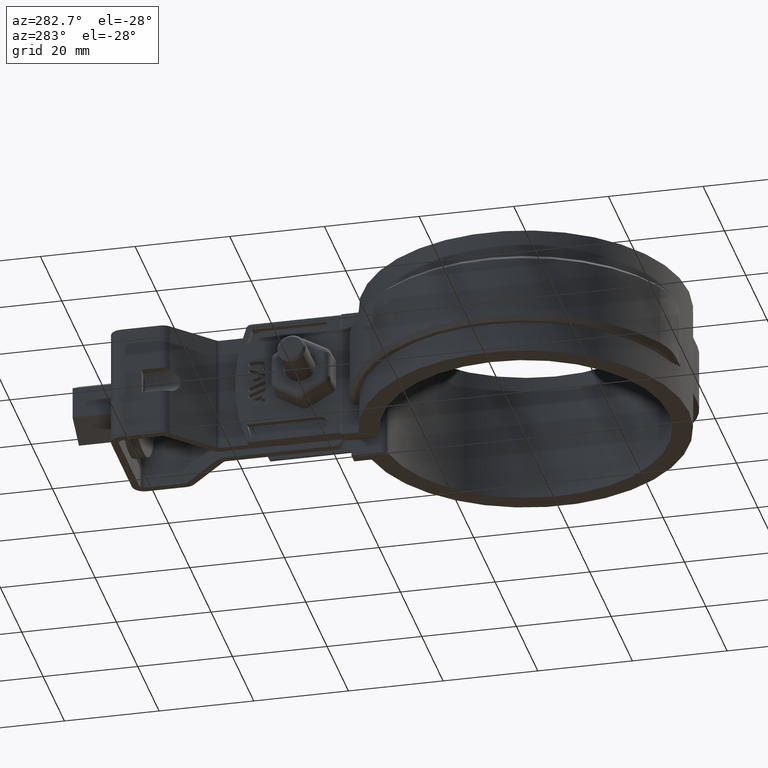
[diagram: clean part render]
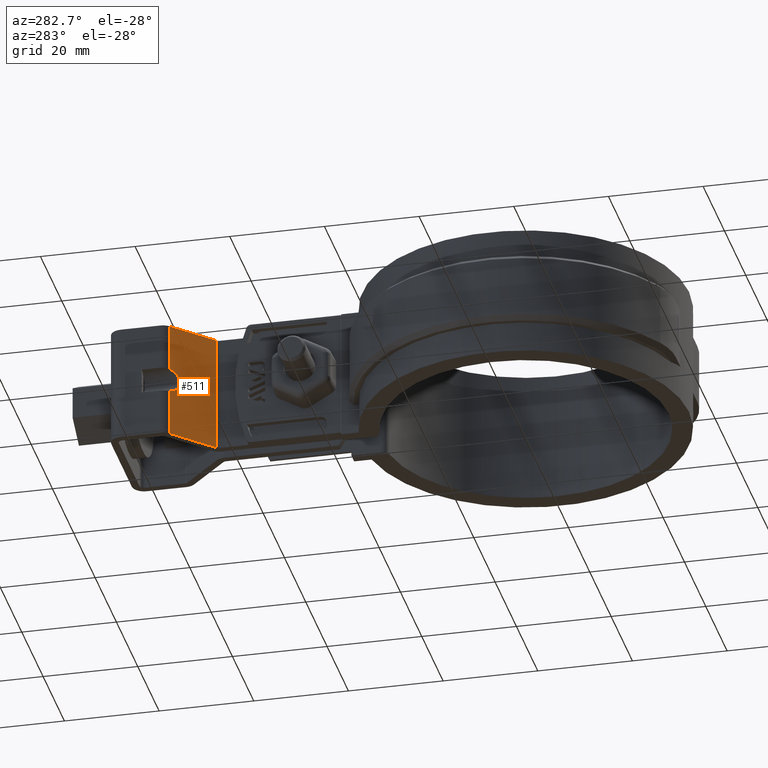
[diagram: same view with one face highlighted and labeled with its STEP entity id]
A machine part, auxiliary view. The second image highlights one B-rep face of the part: STEP entity #511.
In plain terms, the highlighted planar face has unit normal (-0.6983, -0.7158, 0).
Its self-contained STEP definition (entity closure, byte-faithful):
#511 = ADVANCED_FACE( '', ( #1017 ), #1018, .T. );
#1017 = FACE_OUTER_BOUND( '', #2272, .T. );
#1018 = PLANE( '', #2273 );
#2272 = EDGE_LOOP( '', ( #5245, #5246, #5247, #5248, #5249, #5250 ) );
#2273 = AXIS2_PLACEMENT_3D( '', #5251, #5252, #5253 );
#5245 = ORIENTED_EDGE( '', *, *, #7219, .F. );
#5246 = ORIENTED_EDGE( '', *, *, #7256, .T. );
#5247 = ORIENTED_EDGE( '', *, *, #7202, .T. );
#5248 = ORIENTED_EDGE( '', *, *, #7270, .T. );
#5249 = ORIENTED_EDGE( '', *, *, #7271, .F. );
#5250 = ORIENTED_EDGE( '', *, *, #7272, .T. );
#5251 = CARTESIAN_POINT( '', ( -3.90167616451214, 65.2568053779016, -7.67289010106254E-009 ) );
#5252 = DIRECTION( '', ( -0.698323835530437, -0.715781964518567, 4.58548971152386E-011 ) );
#5253 = DIRECTION( '', ( -0.715781964518568, 0.698323835530437, 0.000000000000000 ) );
#7202 = EDGE_CURVE( '', #8406, #8404, #8407, .F. );
#7219 = EDGE_CURVE( '', #8436, #8438, #8439, .T. );
#7256 = EDGE_CURVE( '', #8436, #8406, #8502, .T. );
#7270 = EDGE_CURVE( '', #8404, #8521, #8522, .T. );
#7271 = EDGE_CURVE( '', #8523, #8521, #8524, .T. );
#7272 = EDGE_CURVE( '', #8523, #8438, #8525, .T. );
#8404 = VERTEX_POINT( '', #12045 );
#8406 = VERTEX_POINT( '', #12047 );
#8407 = LINE( '', #12048, #12049 );
#8436 = VERTEX_POINT( '', #12089 );
#8438 = VERTEX_POINT( '', #12091 );
#8439 = LINE( '', #12092, #12093 );
#8502 = LINE( '', #12191, #12192 );
#8521 = VERTEX_POINT( '', #12223 );
#8522 = LINE( '', #12224, #12225 );
#8523 = VERTEX_POINT( '', #12226 );
#8524 = ELLIPSE( '', #12227, 3.70224472166267, 2.64999999999997 );
#8525 = LINE( '', #12228, #12229 );
#12045 = CARTESIAN_POINT( '', ( -11.4656419724226, 72.6362838736385, -8.13982426149921E-009 ) );
#12047 = CARTESIAN_POINT( '', ( -3.30167616451206, 64.6714395513120, -7.63584994444546E-009 ) );
#12048 = CARTESIAN_POINT( '', ( -3.90167616451214, 65.2568053779016, -7.67288887838359E-009 ) );
#12049 = VECTOR( '', #13909, 1000.00000000000 );
#12089 = CARTESIAN_POINT( '', ( -3.30167616452191, 64.6714395497200, -25.0000000076359 ) );
#12091 = CARTESIAN_POINT( '', ( -11.4656419724324, 72.6362838720466, -25.0000000081399 ) );
#12092 = CARTESIAN_POINT( '', ( -15.6164735706971, 76.6858754879665, -25.0000000083961 ) );
#12093 = VECTOR( '', #13936, 1000.00000000000 );
#12191 = CARTESIAN_POINT( '', ( -3.30167616451208, 64.6714395513120, -7.63586416319129E-009 ) );
#12192 = VECTOR( '', #14001, 1000.00000000000 );
#12223 = CARTESIAN_POINT( '', ( -11.4656419724265, 72.6362838730037, -9.96873896184155 ) );
#12224 = CARTESIAN_POINT( '', ( -11.4656419724226, 72.6362838736385, -8.13982214964426E-009 ) );
#12225 = VECTOR( '', #14017, 1000.00000000000 );
#12226 = CARTESIAN_POINT( '', ( -11.4656419724285, 72.6362838726813, -15.0312610544380 ) );
#12227 = AXIS2_PLACEMENT_3D( '', #14018, #14019, #14020 );
#12228 = CARTESIAN_POINT( '', ( -11.4656419724226, 72.6362838736385, -8.13982214964426E-009 ) );
#12229 = VECTOR( '', #14021, 1000.00000000000 );
#13909 = DIRECTION( '', ( 0.715781964518568, -0.698323835530437, 4.41863348298321E-011 ) );
#13936 = DIRECTION( '', ( -0.715781964518568, 0.698323835530437, -4.41863348298321E-011 ) );
#14001 = DIRECTION( '', ( 3.93847312312188E-013, 6.36784194194502E-011, 1.00000000000000 ) );
#14017 = DIRECTION( '', ( -3.93786081994497E-013, -6.36784791563427E-011, -1.00000000000000 ) );
#14018 = CARTESIAN_POINT( '', ( -12.2500000000482, 73.4015111814764, -12.5000000081882 ) );
#14019 = DIRECTION( '', ( -0.698323835530437, -0.715781964518567, 4.58548971152386E-011 ) );
#14020 = DIRECTION( '', ( 0.715781964518568, -0.698323835530437, 4.41863348298321E-011 ) );
#14021 = DIRECTION( '', ( -3.93786081994497E-013, -6.36784791563427E-011, -1.00000000000000 ) );